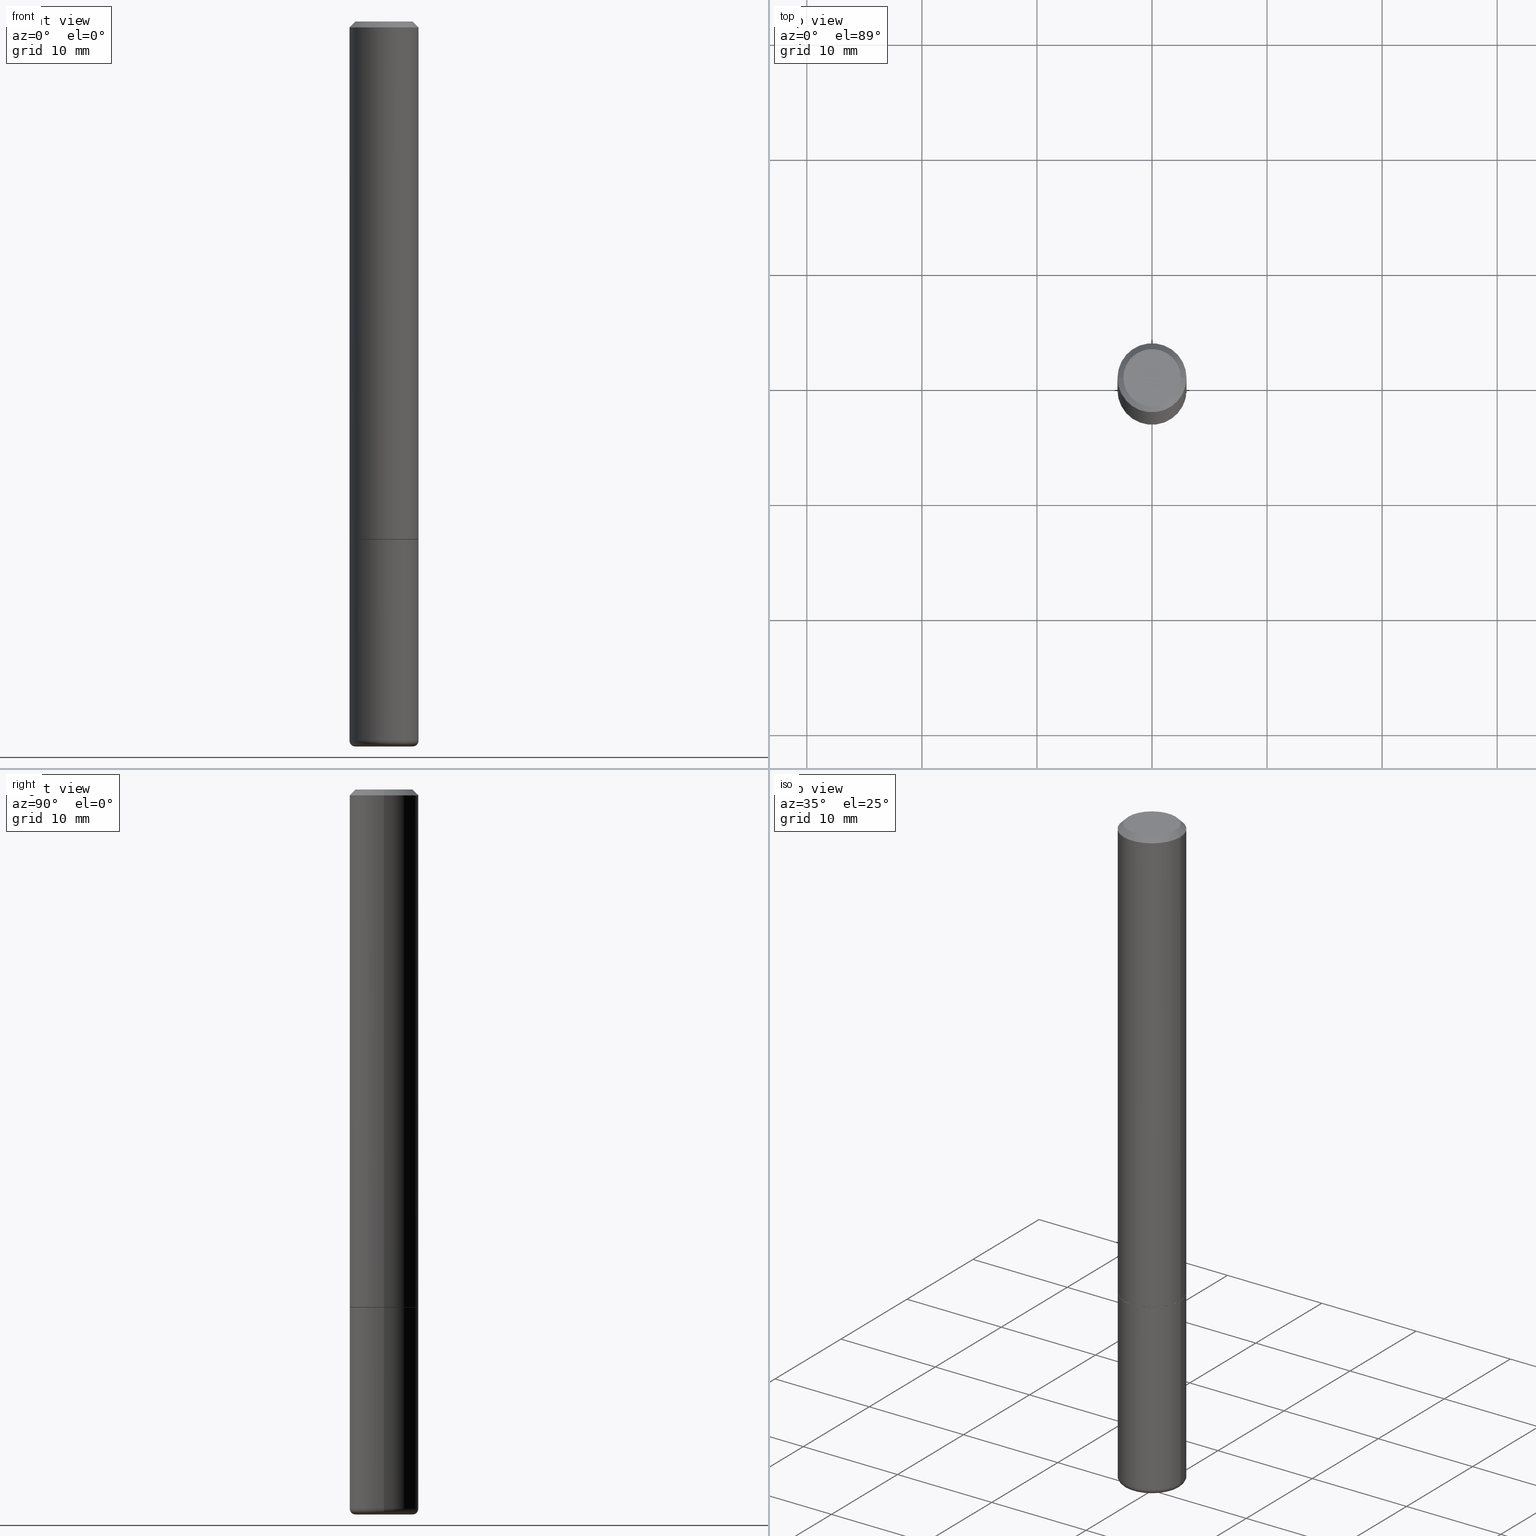
[diagram: canonical four-view strip — front | top / right | iso, engineering-drawing reading convention]
A machine part, canonical four-view strip (front | top / right | iso — engineering-drawing reading convention). The complete STEP part file that produces these views, byte-faithful:
ISO-10303-21;
HEADER;
FILE_DESCRIPTION (( 'STEP AP203' ),
    '1' );
FILE_NAME ('74325.STEP',
    '2024-03-06T15:08:00',
    ( '' ),
    ( '' ),
    'SwSTEP 2.0',
    'SolidWorks 2023',
    '' );
FILE_SCHEMA (( 'CONFIG_CONTROL_DESIGN' ));
ENDSEC;

DATA;
#1 = CARTESIAN_POINT ( 'NONE',  ( -0.09840000000000000135, -7.856367562084741595E-15, -2.480300000000000171 ) ) ;
#2 = DIRECTION ( 'NONE',  ( -6.982962677686266711E-15, -1.000000000000000000, 3.491481338843145583E-15 ) ) ;
#3 = DIRECTION ( 'NONE',  ( -2.445468806185136597E-29, 3.491481338843145583E-15, 1.000000000000000000 ) ) ;
#4 = CIRCLE ( 'NONE', #372, 0.1181000000000000383 ) ;
#5 = CC_DESIGN_APPROVAL ( #174, ( #207 ) ) ;
#6 = FACE_OUTER_BOUND ( 'NONE', #331, .T. ) ;
#7 = DIRECTION ( 'NONE',  ( -2.445468806185136597E-29, 3.491481338843145583E-15, 1.000000000000000000 ) ) ;
#8 = DIRECTION ( 'NONE',  ( -2.445468806185136597E-29, 3.491481338843145583E-15, 1.000000000000000000 ) ) ;
#9 = CARTESIAN_POINT ( 'NONE',  ( 4.332392537037588763E-29, -6.185508339894517569E-15, -1.771600000000000286 ) ) ;
#10 = DIRECTION ( 'NONE',  ( 1.000000000000000000, -6.982962677686264344E-15, 0.000000000000000000 ) ) ;
#11 = APPROVAL_PERSON_ORGANIZATION ( #270, #82, #111 ) ;
#12 = COORDINATED_UNIVERSAL_TIME_OFFSET ( 5, 0, .BEHIND. ) ;
#13 = VERTEX_POINT ( 'NONE', #379 ) ;
#14 = ORIENTED_EDGE ( 'NONE', *, *, #375, .T. ) ;
#15 = DIRECTION ( 'NONE',  ( -1.000000000000000000, 7.105427357601014480E-15, 0.000000000000000000 ) ) ;
#16 = EDGE_LOOP ( 'NONE', ( #206, #256, #295, #34 ) ) ;
#17 = EDGE_CURVE ( 'NONE', #77, #137, #90, .T. ) ;
#18 = APPROVAL_STATUS ( 'not_yet_approved' ) ;
#19 = ADVANCED_FACE ( 'NONE', ( #6 ), #113, .T. ) ;
#20 = DIRECTION ( 'NONE',  ( -2.445468806185136597E-29, 3.491481338843145583E-15, 1.000000000000000000 ) ) ;
#21 = AXIS2_PLACEMENT_3D ( 'NONE', #131, #164, #31 ) ;
#22 = CALENDAR_DATE ( 2024, 6, 3 ) ;
#23 = EDGE_CURVE ( 'NONE', #290, #370, #389, .T. ) ;
#24 = CALENDAR_DATE ( 2024, 6, 3 ) ;
#25 = LINE ( 'NONE', #271, #305 ) ;
#26 = VECTOR ( 'NONE', #56, 39.37007874015748143 ) ;
#27 = SHAPE_DEFINITION_REPRESENTATION ( #73, #367 ) ;
#28 = ADVANCED_FACE ( 'NONE', ( #193 ), #335, .F. ) ;
#29 = EDGE_LOOP ( 'NONE', ( #398, #162 ) ) ;
#30 = VERTEX_POINT ( 'NONE', #258 ) ;
#31 = DIRECTION ( 'NONE',  ( 1.000000000000000000, -6.982962677686264344E-15, 0.000000000000000000 ) ) ;
#32 = CARTESIAN_POINT ( 'NONE',  ( 0.1180999999999999966, -7.010196232129265043E-15, -1.771600000000000286 ) ) ;
#33 = DIRECTION ( 'NONE',  ( 1.000000000000000000, -6.982962677686265133E-15, 0.000000000000000000 ) ) ;
#34 = ORIENTED_EDGE ( 'NONE', *, *, #375, .F. ) ;
#35 = CARTESIAN_POINT ( 'NONE',  ( 4.890937612370288923E-31, -6.982962677686312563E-17, -0.02000000000000006287 ) ) ;
#36 = AXIS2_PLACEMENT_3D ( 'NONE', #194, #291, #10 ) ;
#37 = AXIS2_PLACEMENT_3D ( 'NONE', #187, #253, #184 ) ;
#38 = ORIENTED_EDGE ( 'NONE', *, *, #356, .T. ) ;
#39 = DIRECTION ( 'NONE',  ( 1.000000000000000000, -6.982962677686266711E-15, 4.876176775795936353E-29 ) ) ;
#40 = VERTEX_POINT ( 'NONE', #32 ) ;
#41 = CC_DESIGN_DATE_AND_TIME_ASSIGNMENT ( #235, #313, ( #170 ) ) ;
#42 = CARTESIAN_POINT ( 'NONE',  ( 6.017320544499148018E-29, -8.591138982357444151E-15, -2.460600000000000342 ) ) ;
#43 = CARTESIAN_POINT ( 'NONE',  ( -0.1170999999999999958, -5.353462796319440381E-15, -1.771600000000000286 ) ) ;
#44 = DIRECTION ( 'NONE',  ( 1.000000000000000000, 0.000000000000000000, 0.000000000000000000 ) ) ;
#45 = PERSON_AND_ORGANIZATION ( #188, #108 ) ;
#46 = ORIENTED_EDGE ( 'NONE', *, *, #416, .T. ) ;
#47 = EDGE_CURVE ( 'NONE', #155, #13, #67, .T. ) ;
#48 = ORIENTED_EDGE ( 'NONE', *, *, #185, .F. ) ;
#49 = DATE_AND_TIME ( #22, #296 ) ;
#50 = AXIS2_PLACEMENT_3D ( 'NONE', #312, #230, #39 ) ;
#51 = AXIS2_PLACEMENT_3D ( 'NONE', #98, #7, #154 ) ;
#52 = CC_DESIGN_PERSON_AND_ORGANIZATION_ASSIGNMENT ( #233, #371, ( #170 ) ) ;
#53 = CARTESIAN_POINT ( 'NONE',  ( 0.000000000000000000, 0.000000000000000000, 0.000000000000000000 ) ) ;
#54 = AXIS2_PLACEMENT_3D ( 'NONE', #35, #191, #333 ) ;
#55 = ADVANCED_FACE ( 'NONE', ( #97 ), #319, .F. ) ;
#56 = DIRECTION ( 'NONE',  ( -2.445468806185136877E-29, 3.491481338843145188E-15, 1.000000000000000000 ) ) ;
#57 = EDGE_CURVE ( 'NONE', #63, #160, #378, .T. ) ;
#58 = APPROVAL_ROLE ( '' ) ;
#59 = LOCAL_TIME ( 10, 8, 0.000000000000000000, #306 ) ;
#60 = DIRECTION ( 'NONE',  ( -2.445468806185136597E-29, 3.491481338843145583E-15, 1.000000000000000000 ) ) ;
#61 = CARTESIAN_POINT ( 'NONE',  ( 6.017320544499148018E-29, -8.591138982357444151E-15, -2.460600000000000342 ) ) ;
#62 = DIRECTION ( 'NONE',  ( 1.000000000000000000, -6.982962677686265922E-15, 4.884890577880254879E-29 ) ) ;
#63 = VERTEX_POINT ( 'NONE', #143 ) ;
#64 = DIRECTION ( 'NONE',  ( -2.445468806185136597E-29, 3.491481338843145583E-15, 1.000000000000000000 ) ) ;
#65 = ORIENTED_EDGE ( 'NONE', *, *, #156, .T. ) ;
#66 = CARTESIAN_POINT ( 'NONE',  ( 0.000000000000000000, 0.000000000000000000, 0.000000000000000000 ) ) ;
#67 = CIRCLE ( 'NONE', #248, 0.01970000000000002999 ) ;
#68 = CONICAL_SURFACE ( 'NONE', #37, 0.1181000000000000383, 0.7853981633974463916 ) ;
#69 = EDGE_LOOP ( 'NONE', ( #96, #303, #85, #323 ) ) ;
#70 = DIRECTION ( 'NONE',  ( -1.000000000000000000, 6.982962677686265922E-15, -4.876176775795935793E-29 ) ) ;
#71 = CC_DESIGN_DATE_AND_TIME_ASSIGNMENT ( #264, #144, ( #207 ) ) ;
#72 = PLANE ( 'NONE',  #365 ) ;
#73 = PRODUCT_DEFINITION_SHAPE ( 'NONE', 'NONE',  #207 ) ;
#74 = PERSON_AND_ORGANIZATION ( #188, #108 ) ;
#75 = ORIENTED_EDGE ( 'NONE', *, *, #347, .T. ) ;
#76 = EDGE_CURVE ( 'NONE', #261, #13, #391, .T. ) ;
#77 = VERTEX_POINT ( 'NONE', #345 ) ;
#78 = CARTESIAN_POINT ( 'NONE',  ( 0.000000000000000000, 0.000000000000000000, 0.000000000000000000 ) ) ;
#79 = APPLICATION_PROTOCOL_DEFINITION ( 'international standard', 'config_control_design', 1994, #125 ) ;
#80 = MECHANICAL_CONTEXT ( 'NONE', #302, 'mechanical' ) ;
#81 = DIRECTION ( 'NONE',  ( -0.7071067811865461294, 2.468850131082242072E-15, -0.7071067811865489050 ) ) ;
#82 = APPROVAL ( #268, 'UNSPECIFIED' ) ;
#83 = AXIS2_PLACEMENT_3D ( 'NONE', #337, #225, #15 ) ;
#84 = LINE ( 'NONE', #43, #209 ) ;
#85 = ORIENTED_EDGE ( 'NONE', *, *, #129, .T. ) ;
#86 = ADVANCED_FACE ( 'NONE', ( #122 ), #133, .T. ) ;
#87 = CLOSED_SHELL ( 'NONE', ( #19, #300, #316, #317, #135, #210, #369, #55 ) ) ;
#88 = CIRCLE ( 'NONE', #176, 0.1181000000000002187 ) ;
#89 = CARTESIAN_POINT ( 'NONE',  ( 4.332392537037588763E-29, -6.185508339894517569E-15, -1.771600000000000286 ) ) ;
#90 = LINE ( 'NONE', #179, #139 ) ;
#91 = PLANE ( 'NONE',  #169 ) ;
#92 = CARTESIAN_POINT ( 'NONE',  ( 6.017320544499148018E-29, -8.591138982357444151E-15, -2.460600000000000342 ) ) ;
#93 = CC_DESIGN_PERSON_AND_ORGANIZATION_ASSIGNMENT ( #368, #173, ( #182 ) ) ;
#94 = DIRECTION ( 'NONE',  ( -2.445468806185136597E-29, 3.491481338843145583E-15, 1.000000000000000000 ) ) ;
#95 = CARTESIAN_POINT ( 'NONE',  ( 4.332392537037588763E-29, -6.185508339894517569E-15, -1.771600000000000286 ) ) ;
#96 = ORIENTED_EDGE ( 'NONE', *, *, #17, .F. ) ;
#97 = FACE_OUTER_BOUND ( 'NONE', #197, .T. ) ;
#98 = CARTESIAN_POINT ( 'NONE',  ( 6.065496279980994755E-29, -8.659921164732655335E-15, -2.480300000000000171 ) ) ;
#99 = DIRECTION ( 'NONE',  ( -2.445468806185136597E-29, 3.491481338843145583E-15, 1.000000000000000000 ) ) ;
#100 = ADVANCED_FACE ( 'NONE', ( #380 ), #91, .T. ) ;
#101 = CARTESIAN_POINT ( 'NONE',  ( 0.1170999999999999958, -7.003213269451579029E-15, -1.771600000000000286 ) ) ;
#102 = CARTESIAN_POINT ( 'NONE',  ( 0.000000000000000000, 0.000000000000000000, 0.000000000000000000 ) ) ;
#103 = VERTEX_POINT ( 'NONE', #1 ) ;
#104 = CARTESIAN_POINT ( 'NONE',  ( 4.332392537037588763E-29, -6.185508339894517569E-15, -1.771600000000000286 ) ) ;
#105 =( NAMED_UNIT ( * ) SI_UNIT ( $, .STERADIAN. ) SOLID_ANGLE_UNIT ( ) );
#106 = EDGE_CURVE ( 'NONE', #160, #137, #315, .T. ) ;
#107 = AXIS2_PLACEMENT_3D ( 'NONE', #102, #251, #360 ) ;
#108 = ORGANIZATION ( 'UNSPECIFIED', 'UNSPECIFIED', '' ) ;
#109 = ORIENTED_EDGE ( 'NONE', *, *, #356, .F. ) ;
#110 = ORIENTED_EDGE ( 'NONE', *, *, #281, .F. ) ;
#111 = APPROVAL_ROLE ( '' ) ;
#112 = DIRECTION ( 'NONE',  ( 1.000000000000000000, -6.982962677686273021E-15, 0.000000000000000000 ) ) ;
#113 = CONICAL_SURFACE ( 'NONE', #358, 0.1170999999999999958, 0.7853981633975251064 ) ;
#114 = ORIENTED_EDGE ( 'NONE', *, *, #281, .T. ) ;
#115 = CC_DESIGN_APPROVAL ( #82, ( #182 ) ) ;
#116 = ORIENTED_EDGE ( 'NONE', *, *, #292, .F. ) ;
#117 = ORIENTED_EDGE ( 'NONE', *, *, #276, .T. ) ;
#118 = CIRCLE ( 'NONE', #83, 0.01970000000000002999 ) ;
#119 = APPROVAL_STATUS ( 'not_yet_approved' ) ;
#120 = DIRECTION ( 'NONE',  ( 2.438088387897960049E-29, -3.491481338843145188E-15, -1.000000000000000000 ) ) ;
#121 = CARTESIAN_POINT ( 'NONE',  ( 0.09840000000000000135, -9.347044692216982806E-15, -2.480300000000000171 ) ) ;
#122 = FACE_OUTER_BOUND ( 'NONE', #213, .T. ) ;
#123 = DIRECTION ( 'NONE',  ( -2.438088387897960049E-29, 3.491481338843145188E-15, 1.000000000000000000 ) ) ;
#124 = AXIS2_PLACEMENT_3D ( 'NONE', #320, #354, #62 ) ;
#125 = APPLICATION_CONTEXT ( 'configuration controlled 3d designs of mechanical parts and assemblies' ) ;
#126 = VECTOR ( 'NONE', #329, 39.37007874015748143 ) ;
#127 = LINE ( 'NONE', #132, #126 ) ;
#128 = CYLINDRICAL_SURFACE ( 'NONE', #107, 0.1180999999999999966 ) ;
#129 = EDGE_CURVE ( 'NONE', #341, #160, #25, .T. ) ;
#130 = ORIENTED_EDGE ( 'NONE', *, *, #142, .T. ) ;
#131 = CARTESIAN_POINT ( 'NONE',  ( 4.332392537037588763E-29, -6.185508339894517569E-15, -1.771600000000000286 ) ) ;
#132 = CARTESIAN_POINT ( 'NONE',  ( -0.1180999999999999966, 8.391509709326782957E-16, -5.809262341591043784E-30 ) ) ;
#133 = TOROIDAL_SURFACE ( 'NONE', #272, 0.09840000000000000135, 0.01970000000000002999 ) ;
#134 = CIRCLE ( 'NONE', #401, 0.1180999999999999966 ) ;
#135 = ADVANCED_FACE ( 'NONE', ( #344 ), #407, .T. ) ;
#136 = EDGE_LOOP ( 'NONE', ( #289, #117, #338, #412 ) ) ;
#137 = VERTEX_POINT ( 'NONE', #254 ) ;
#138 = APPROVAL_ROLE ( '' ) ;
#139 = VECTOR ( 'NONE', #293, 39.37007874015748143 ) ;
#140 = CIRCLE ( 'NONE', #241, 0.1180999999999999966 ) ;
#141 = SECURITY_CLASSIFICATION_LEVEL ( 'unclassified' ) ;
#142 = EDGE_CURVE ( 'NONE', #341, #77, #204, .T. ) ;
#143 = CARTESIAN_POINT ( 'NONE',  ( -0.1181000000000002187, -2.286772271733587183E-15, -1.770600000000000174 ) ) ;
#144 = DATE_TIME_ROLE ( 'creation_date' ) ;
#145 = EDGE_CURVE ( 'NONE', #40, #30, #364, .T. ) ;
#146 = DIRECTION ( 'NONE',  ( -2.445468806185136597E-29, 3.491481338843145583E-15, 1.000000000000000000 ) ) ;
#147 = CARTESIAN_POINT ( 'NONE',  ( 4.890937612370288923E-31, -6.982962677686312563E-17, -0.02000000000000006287 ) ) ;
#148 = EDGE_CURVE ( 'NONE', #13, #40, #381, .T. ) ;
#149 = UNCERTAINTY_MEASURE_WITH_UNIT (LENGTH_MEASURE( 1.000000000000000082E-05 ), #168, 'distance_accuracy_value', 'NONE');
#150 = DIRECTION ( 'NONE',  ( -2.445468806185136877E-29, 3.491481338843145188E-15, 1.000000000000000000 ) ) ;
#151 = FACE_OUTER_BOUND ( 'NONE', #29, .T. ) ;
#152 = CARTESIAN_POINT ( 'NONE',  ( 0.09840000000000000135, -9.278262509841773199E-15, -2.460600000000000342 ) ) ;
#153 = CC_DESIGN_SECURITY_CLASSIFICATION ( #170, ( #182 ) ) ;
#154 = DIRECTION ( 'NONE',  ( 1.000000000000000000, -6.982962677686261977E-15, 0.000000000000000000 ) ) ;
#155 = VERTEX_POINT ( 'NONE', #121 ) ;
#156 = EDGE_CURVE ( 'NONE', #137, #160, #4, .T. ) ;
#157 = LOCAL_TIME ( 10, 8, 0.000000000000000000, #239 ) ;
#158 = ADVANCED_FACE ( 'NONE', ( #237 ), #373, .T. ) ;
#159 = DIRECTION ( 'NONE',  ( 1.000000000000000000, -6.982962677686264344E-15, 0.000000000000000000 ) ) ;
#160 = VERTEX_POINT ( 'NONE', #273 ) ;
#161 = DIRECTION ( 'NONE',  ( 1.000000000000000000, -6.982962677686273021E-15, 0.000000000000000000 ) ) ;
#162 = ORIENTED_EDGE ( 'NONE', *, *, #332, .F. ) ;
#163 = EDGE_CURVE ( 'NONE', #267, #63, #84, .T. ) ;
#164 = DIRECTION ( 'NONE',  ( -2.445468806185136597E-29, 3.491481338843145583E-15, 1.000000000000000000 ) ) ;
#165 = DIRECTION ( 'NONE',  ( -0.7071067811866017516, 7.493145998870549798E-15, 0.7071067811864931718 ) ) ;
#166 = EDGE_LOOP ( 'NONE', ( #243, #285 ) ) ;
#167 = ORIENTED_EDGE ( 'NONE', *, *, #106, .F. ) ;
#168 =( CONVERSION_BASED_UNIT ( 'INCH', #363 ) LENGTH_UNIT ( ) NAMED_UNIT ( #343 ) );
#169 = AXIS2_PLACEMENT_3D ( 'NONE', #180, #417, #211 ) ;
#170 = SECURITY_CLASSIFICATION ( '', '', #141 ) ;
#171 = PERSON_AND_ORGANIZATION ( #188, #108 ) ;
#172 = ORIENTED_EDGE ( 'NONE', *, *, #129, .F. ) ;
#173 = PERSON_AND_ORGANIZATION_ROLE ( 'design_supplier' ) ;
#174 = APPROVAL ( #18, 'UNSPECIFIED' ) ;
#175 = AXIS2_PLACEMENT_3D ( 'NONE', #280, #120, #245 ) ;
#176 = AXIS2_PLACEMENT_3D ( 'NONE', #327, #399, #396 ) ;
#177 = VECTOR ( 'NONE', #150, 39.37007874015748143 ) ;
#178 = EDGE_LOOP ( 'NONE', ( #349, #14, #374, #167 ) ) ;
#179 = CARTESIAN_POINT ( 'NONE',  ( 0.1181000000000000383, -8.800544403136812319E-16, -0.02000000000000006287 ) ) ;
#180 = CARTESIAN_POINT ( 'NONE',  ( 6.065496279980994755E-29, -8.659921164732655335E-15, -2.480300000000000171 ) ) ;
#181 = DATE_AND_TIME ( #203, #157 ) ;
#182 = PRODUCT_DEFINITION_FORMATION_WITH_SPECIFIED_SOURCE ( 'ANY', '', #282, .NOT_KNOWN. ) ;
#183 = DIRECTION ( 'NONE',  ( 1.000000000000000000, -6.982962677686266711E-15, 4.876176775795936353E-29 ) ) ;
#184 = DIRECTION ( 'NONE',  ( -1.000000000000000000, 6.982962677686266711E-15, 0.000000000000000000 ) ) ;
#185 = EDGE_CURVE ( 'NONE', #370, #137, #362, .T. ) ;
#186 = ORIENTED_EDGE ( 'NONE', *, *, #163, .T. ) ;
#187 = CARTESIAN_POINT ( 'NONE',  ( 4.890937612370288923E-31, -6.982962677686312563E-17, -0.02000000000000006287 ) ) ;
#188 = PERSON ( 'UNSPECIFIED', 'UNSPECIFIED', 'UNSPECIFIED', ('UNSPECIFIED'), ('UNSPECIFIED'), ('UNSPECIFIED') ) ;
#189 = EDGE_LOOP ( 'NONE', ( #301, #222, #200, #48 ) ) ;
#190 = CONICAL_SURFACE ( 'NONE', #54, 0.1181000000000000383, 0.7853981633974463916 ) ;
#191 = DIRECTION ( 'NONE',  ( 2.445468806185136597E-29, -3.491481338843145583E-15, -1.000000000000000000 ) ) ;
#192 = ORIENTED_EDGE ( 'NONE', *, *, #234, .F. ) ;
#193 = FACE_OUTER_BOUND ( 'NONE', #166, .T. ) ;
#194 = CARTESIAN_POINT ( 'NONE',  ( 4.332392537037588763E-29, -6.185508339894517569E-15, -1.771600000000000286 ) ) ;
#195 =( NAMED_UNIT ( * ) PLANE_ANGLE_UNIT ( ) SI_UNIT ( $, .RADIAN. ) );
#196 = CARTESIAN_POINT ( 'NONE',  ( 0.1181000000000001354, -8.246878922347490515E-16, 5.758764772215007447E-30 ) ) ;
#197 = EDGE_LOOP ( 'NONE', ( #130, #114 ) ) ;
#198 = ORIENTED_EDGE ( 'NONE', *, *, #275, .F. ) ;
#199 = DIRECTION ( 'NONE',  ( 0.000000000000000000, 0.000000000000000000, 1.000000000000000000 ) ) ;
#200 = ORIENTED_EDGE ( 'NONE', *, *, #156, .F. ) ;
#201 = ADVANCED_FACE ( 'NONE', ( #255 ), #128, .T. ) ;
#202 = DATE_AND_TIME ( #24, #348 ) ;
#203 = CALENDAR_DATE ( 2024, 6, 3 ) ;
#204 = CIRCLE ( 'NONE', #124, 0.09809999999999986786 ) ;
#205 = AXIS2_PLACEMENT_3D ( 'NONE', #66, #64, #183 ) ;
#206 = ORIENTED_EDGE ( 'NONE', *, *, #163, .F. ) ;
#207 = PRODUCT_DEFINITION ( 'UNKNOWN', '', #182, #397 ) ;
#208 = FACE_OUTER_BOUND ( 'NONE', #16, .T. ) ;
#209 = VECTOR ( 'NONE', #165, 39.37007874015748854 ) ;
#210 = ADVANCED_FACE ( 'NONE', ( #208 ), #278, .T. ) ;
#211 = DIRECTION ( 'NONE',  ( -1.000000000000000000, 6.982962677686265922E-15, -4.876176775795935793E-29 ) ) ;
#212 = CARTESIAN_POINT ( 'NONE',  ( 0.1181000000000002187, -7.006704750790424403E-15, -1.770600000000000174 ) ) ;
#213 = EDGE_LOOP ( 'NONE', ( #395, #46, #192, #297 ) ) ;
#214 = ADVANCED_FACE ( 'NONE', ( #351 ), #286, .T. ) ;
#215 = DIRECTION ( 'NONE',  ( 2.438088387897960049E-29, -3.491481338843145188E-15, -1.000000000000000000 ) ) ;
#216 = CARTESIAN_POINT ( 'NONE',  ( 4.329947068231403160E-29, -6.182016858555674562E-15, -1.770600000000000174 ) ) ;
#217 = DIRECTION ( 'NONE',  ( -2.445468806185136597E-29, 3.491481338843145583E-15, 1.000000000000000000 ) ) ;
#218 = AXIS2_PLACEMENT_3D ( 'NONE', #53, #146, #376 ) ;
#219 = AXIS2_PLACEMENT_3D ( 'NONE', #95, #60, #159 ) ;
#220 = DIRECTION ( 'NONE',  ( 0.7071067811866017516, -2.468850131082825040E-15, 0.7071067811864931718 ) ) ;
#221 = DIRECTION ( 'NONE',  ( 1.000000000000000000, -6.982962677686265922E-15, 4.884890577880254879E-29 ) ) ;
#222 = ORIENTED_EDGE ( 'NONE', *, *, #57, .T. ) ;
#223 = APPROVAL_DATE_TIME ( #49, #82 ) ;
#224 = EDGE_LOOP ( 'NONE', ( #247, #38, #238, #408 ) ) ;
#225 = DIRECTION ( 'NONE',  ( 7.105427357601001859E-15, 1.000000000000000000, -3.491481338843145583E-15 ) ) ;
#226 = ORIENTED_EDGE ( 'NONE', *, *, #276, .F. ) ;
#227 = VECTOR ( 'NONE', #299, 39.37007874015748143 ) ;
#228 = PERSON_AND_ORGANIZATION_ROLE ( 'creator' ) ;
#229 = APPROVAL_PERSON_ORGANIZATION ( #318, #340, #58 ) ;
#230 = DIRECTION ( 'NONE',  ( -2.445468806185136597E-29, 3.491481338843145583E-15, 1.000000000000000000 ) ) ;
#231 = EDGE_CURVE ( 'NONE', #30, #40, #140, .T. ) ;
#232 = PERSON_AND_ORGANIZATION_ROLE ( 'creator' ) ;
#233 = PERSON_AND_ORGANIZATION ( #188, #108 ) ;
#234 = EDGE_CURVE ( 'NONE', #13, #261, #134, .T. ) ;
#235 = DATE_AND_TIME ( #298, #410 ) ;
#236 = AXIS2_PLACEMENT_3D ( 'NONE', #9, #215, #70 ) ;
#237 = FACE_OUTER_BOUND ( 'NONE', #136, .T. ) ;
#238 = ORIENTED_EDGE ( 'NONE', *, *, #47, .T. ) ;
#239 = COORDINATED_UNIVERSAL_TIME_OFFSET ( 5, 0, .BEHIND. ) ;
#240 = CLOSED_SHELL ( 'NONE', ( #158, #86, #28, #201, #214, #100 ) ) ;
#241 = AXIS2_PLACEMENT_3D ( 'NONE', #326, #99, #33 ) ;
#242 = CC_DESIGN_PERSON_AND_ORGANIZATION_ASSIGNMENT ( #45, #304, ( #282 ) ) ;
#243 = ORIENTED_EDGE ( 'NONE', *, *, #145, .T. ) ;
#244 = DIRECTION ( 'NONE',  ( 1.000000000000000000, -6.982962677686265133E-15, 0.000000000000000000 ) ) ;
#245 = DIRECTION ( 'NONE',  ( -1.000000000000000000, 6.982962677686265922E-15, -4.876176775795935793E-29 ) ) ;
#246 = CARTESIAN_POINT ( 'NONE',  ( 6.065496279980994755E-29, -8.659921164732655335E-15, -2.480300000000000171 ) ) ;
#247 = ORIENTED_EDGE ( 'NONE', *, *, #416, .F. ) ;
#248 = AXIS2_PLACEMENT_3D ( 'NONE', #152, #2, #386 ) ;
#249 = FACE_OUTER_BOUND ( 'NONE', #189, .T. ) ;
#250 = DIRECTION ( 'NONE',  ( -2.445468806185136597E-29, 3.491481338843145583E-15, 1.000000000000000000 ) ) ;
#251 = DIRECTION ( 'NONE',  ( -2.445468806185136597E-29, 3.491481338843145583E-15, 1.000000000000000000 ) ) ;
#252 = DIRECTION ( 'NONE',  ( 1.000000000000000000, -6.982962677686264344E-15, 0.000000000000000000 ) ) ;
#253 = DIRECTION ( 'NONE',  ( 2.445468806185136597E-29, -3.491481338843145583E-15, -1.000000000000000000 ) ) ;
#254 = CARTESIAN_POINT ( 'NONE',  ( 0.1181000000000000383, -8.800544403136812319E-16, -0.02000000000000006287 ) ) ;
#255 = FACE_OUTER_BOUND ( 'NONE', #328, .T. ) ;
#256 = ORIENTED_EDGE ( 'NONE', *, *, #332, .T. ) ;
#257 = CIRCLE ( 'NONE', #359, 0.1181000000000002187 ) ;
#258 = CARTESIAN_POINT ( 'NONE',  ( -0.1180999999999999966, -6.549172690193302663E-15, -1.771600000000000286 ) ) ;
#259 = FACE_OUTER_BOUND ( 'NONE', #260, .T. ) ;
#260 = EDGE_LOOP ( 'NONE', ( #110, #400, #65, #172 ) ) ;
#261 = VERTEX_POINT ( 'NONE', #353 ) ;
#262 = APPROVAL_DATE_TIME ( #202, #174 ) ;
#263 = AXIS2_PLACEMENT_3D ( 'NONE', #61, #217, #336 ) ;
#264 = DATE_AND_TIME ( #366, #59 ) ;
#265 = CIRCLE ( 'NONE', #21, 0.1170999999999999958 ) ;
#266 = DIRECTION ( 'NONE',  ( 1.000000000000000000, -6.982962677686266711E-15, 0.000000000000000000 ) ) ;
#267 = VERTEX_POINT ( 'NONE', #387 ) ;
#268 = APPROVAL_STATUS ( 'not_yet_approved' ) ;
#269 = CARTESIAN_POINT ( 'NONE',  ( 6.017320544499148018E-29, -8.591138982357444151E-15, -2.460600000000000342 ) ) ;
#270 = PERSON_AND_ORGANIZATION ( #188, #108 ) ;
#271 = CARTESIAN_POINT ( 'NONE',  ( -0.1181000000000000383, 7.548582654578852602E-16, -0.02000000000000006287 ) ) ;
#272 = AXIS2_PLACEMENT_3D ( 'NONE', #92, #94, #325 ) ;
#273 = CARTESIAN_POINT ( 'NONE',  ( -0.1181000000000000383, 7.548582654578852602E-16, -0.02000000000000006287 ) ) ;
#274 = DIRECTION ( 'NONE',  ( 1.000000000000000000, -6.982962677686266711E-15, 0.000000000000000000 ) ) ;
#275 = EDGE_CURVE ( 'NONE', #155, #103, #415, .T. ) ;
#276 = EDGE_CURVE ( 'NONE', #261, #30, #127, .T. ) ;
#277 = DIRECTION ( 'NONE',  ( -2.445468806185136597E-29, 3.491481338843145583E-15, 1.000000000000000000 ) ) ;
#278 = CONICAL_SURFACE ( 'NONE', #36, 0.1170999999999999958, 0.7853981633975251064 ) ;
#279 = AXIS2_PLACEMENT_3D ( 'NONE', #246, #394, #283 ) ;
#280 = CARTESIAN_POINT ( 'NONE',  ( 6.850286386810217648E-16, 0.09809999999999986786, -2.528755570484034997E-16 ) ) ;
#281 = EDGE_CURVE ( 'NONE', #77, #341, #330, .T. ) ;
#282 = PRODUCT ( '74325', '74325', '', ( #80 ) ) ;
#283 = DIRECTION ( 'NONE',  ( 1.000000000000000000, -6.982962677686261977E-15, 0.000000000000000000 ) ) ;
#284 = CARTESIAN_POINT ( 'NONE',  ( 0.1170999999999999958, -7.003213269451579029E-15, -1.771600000000000286 ) ) ;
#285 = ORIENTED_EDGE ( 'NONE', *, *, #231, .T. ) ;
#286 = TOROIDAL_SURFACE ( 'NONE', #263, 0.09840000000000000135, 0.01970000000000002999 ) ;
#287 = AXIS2_PLACEMENT_3D ( 'NONE', #78, #199, #44 ) ;
#288 = DIRECTION ( 'NONE',  ( 1.000000000000000000, -6.982962677686265922E-15, 4.876176775795935793E-29 ) ) ;
#289 = ORIENTED_EDGE ( 'NONE', *, *, #234, .T. ) ;
#290 = VERTEX_POINT ( 'NONE', #284 ) ;
#291 = DIRECTION ( 'NONE',  ( -2.445468806185136597E-29, 3.491481338843145583E-15, 1.000000000000000000 ) ) ;
#292 = EDGE_CURVE ( 'NONE', #370, #63, #257, .T. ) ;
#293 = DIRECTION ( 'NONE',  ( 0.7071067811865461294, -7.319954787623251312E-15, -0.7071067811865489050 ) ) ;
#294 = CARTESIAN_POINT ( 'NONE',  ( -0.09809999999999986786, 7.199434520694538083E-16, 1.792775245842123495E-16 ) ) ;
#295 = ORIENTED_EDGE ( 'NONE', *, *, #23, .T. ) ;
#296 = LOCAL_TIME ( 10, 8, 0.000000000000000000, #12 ) ;
#297 = ORIENTED_EDGE ( 'NONE', *, *, #47, .F. ) ;
#298 = CALENDAR_DATE ( 2024, 6, 3 ) ;
#299 = DIRECTION ( 'NONE',  ( -2.445468806185136877E-29, 3.491481338843145188E-15, 1.000000000000000000 ) ) ;
#300 = ADVANCED_FACE ( 'NONE', ( #249 ), #383, .T. ) ;
#301 = ORIENTED_EDGE ( 'NONE', *, *, #292, .T. ) ;
#302 = APPLICATION_CONTEXT ( 'configuration controlled 3d designs of mechanical parts and assemblies' ) ;
#303 = ORIENTED_EDGE ( 'NONE', *, *, #142, .F. ) ;
#304 = PERSON_AND_ORGANIZATION_ROLE ( 'design_owner' ) ;
#305 = VECTOR ( 'NONE', #81, 39.37007874015748143 ) ;
#306 = COORDINATED_UNIVERSAL_TIME_OFFSET ( 5, 0, .BEHIND. ) ;
#307 = CIRCLE ( 'NONE', #279, 0.09840000000000000135 ) ;
#308 = MANIFOLD_SOLID_BREP ( 'Body-Move/Copy2[1]', #240 ) ;
#309 = EDGE_LOOP ( 'NONE', ( #198, #109 ) ) ;
#310 = CC_DESIGN_PERSON_AND_ORGANIZATION_ASSIGNMENT ( #402, #232, ( #182 ) ) ;
#311 = COORDINATED_UNIVERSAL_TIME_OFFSET ( 5, 0, .BEHIND. ) ;
#312 = CARTESIAN_POINT ( 'NONE',  ( 0.000000000000000000, 0.000000000000000000, 0.000000000000000000 ) ) ;
#313 = DATE_TIME_ROLE ( 'classification_date' ) ;
#314 = AXIS2_PLACEMENT_3D ( 'NONE', #147, #20, #266 ) ;
#315 = CIRCLE ( 'NONE', #314, 0.1181000000000000383 ) ;
#316 = ADVANCED_FACE ( 'NONE', ( #259 ), #68, .T. ) ;
#317 = ADVANCED_FACE ( 'NONE', ( #390 ), #190, .T. ) ;
#318 = PERSON_AND_ORGANIZATION ( #188, #108 ) ;
#319 = PLANE ( 'NONE',  #175 ) ;
#320 = CARTESIAN_POINT ( 'NONE',  ( -4.384175940207923203E-45, 6.259441315597878405E-31, 1.792775245842172799E-16 ) ) ;
#321 = ORIENTED_EDGE ( 'NONE', *, *, #23, .F. ) ;
#322 = MANIFOLD_SOLID_BREP ( 'Body-Move/Copy2[2]', #87 ) ;
#323 = ORIENTED_EDGE ( 'NONE', *, *, #106, .T. ) ;
#324 = APPROVAL_PERSON_ORGANIZATION ( #74, #174, #138 ) ;
#325 = DIRECTION ( 'NONE',  ( 1.000000000000000000, -6.982962677686270655E-15, 4.883557194083114583E-29 ) ) ;
#326 = CARTESIAN_POINT ( 'NONE',  ( 4.332392537037588763E-29, -6.185508339894517569E-15, -1.771600000000000286 ) ) ;
#327 = CARTESIAN_POINT ( 'NONE',  ( 4.329947068231403160E-29, -6.182016858555674562E-15, -1.770600000000000174 ) ) ;
#328 = EDGE_LOOP ( 'NONE', ( #226, #393, #334, #384 ) ) ;
#329 = DIRECTION ( 'NONE',  ( -2.445468806185136877E-29, 3.491481338843145188E-15, 1.000000000000000000 ) ) ;
#330 = CIRCLE ( 'NONE', #342, 0.09809999999999986786 ) ;
#331 = EDGE_LOOP ( 'NONE', ( #75, #186, #116, #321 ) ) ;
#332 = EDGE_CURVE ( 'NONE', #267, #290, #265, .T. ) ;
#333 = DIRECTION ( 'NONE',  ( -1.000000000000000000, 6.982962677686266711E-15, 0.000000000000000000 ) ) ;
#334 = ORIENTED_EDGE ( 'NONE', *, *, #148, .T. ) ;
#335 = PLANE ( 'NONE',  #236 ) ;
#336 = DIRECTION ( 'NONE',  ( 1.000000000000000000, -6.982962677686270655E-15, 4.883557194083114583E-29 ) ) ;
#337 = CARTESIAN_POINT ( 'NONE',  ( -0.09840000000000000135, -7.891964930369506840E-15, -2.460600000000000342 ) ) ;
#338 = ORIENTED_EDGE ( 'NONE', *, *, #145, .F. ) ;
#339 = APPLICATION_PROTOCOL_DEFINITION ( 'international standard', 'config_control_design', 1994, #302 ) ;
#340 = APPROVAL ( #119, 'UNSPECIFIED' ) ;
#341 = VERTEX_POINT ( 'NONE', #294 ) ;
#342 = AXIS2_PLACEMENT_3D ( 'NONE', #388, #357, #221 ) ;
#343 = DIMENSIONAL_EXPONENTS ( 1.000000000000000000, 0.000000000000000000, 0.000000000000000000, 0.000000000000000000, 0.000000000000000000, 0.000000000000000000, 0.000000000000000000 ) ;
#344 = FACE_OUTER_BOUND ( 'NONE', #178, .T. ) ;
#345 = CARTESIAN_POINT ( 'NONE',  ( 0.09809999999999986786, -7.765346469475334625E-16, 1.792775245842223582E-16 ) ) ;
#346 = APPROVAL_DATE_TIME ( #181, #340 ) ;
#347 = EDGE_CURVE ( 'NONE', #290, #267, #352, .T. ) ;
#348 = LOCAL_TIME ( 10, 8, 0.000000000000000000, #311 ) ;
#349 = ORIENTED_EDGE ( 'NONE', *, *, #57, .F. ) ;
#350 = CARTESIAN_POINT ( 'NONE',  ( 0.1180999999999999966, -8.246878922347480654E-16, 5.758764772215000440E-30 ) ) ;
#351 = FACE_OUTER_BOUND ( 'NONE', #224, .T. ) ;
#352 = CIRCLE ( 'NONE', #219, 0.1170999999999999958 ) ;
#353 = CARTESIAN_POINT ( 'NONE',  ( -0.1181000000000000105, -7.751988011424766742E-15, -2.460600000000000342 ) ) ;
#354 = DIRECTION ( 'NONE',  ( -2.445468806185136597E-29, 3.491481338843145583E-15, 1.000000000000000000 ) ) ;
#355 = DIRECTION ( 'NONE',  ( 1.000000000000000000, -6.982962677686267499E-15, 0.000000000000000000 ) ) ;
#356 = EDGE_CURVE ( 'NONE', #103, #155, #307, .T. ) ;
#357 = DIRECTION ( 'NONE',  ( -2.445468806185136597E-29, 3.491481338843145583E-15, 1.000000000000000000 ) ) ;
#358 = AXIS2_PLACEMENT_3D ( 'NONE', #104, #250, #252 ) ;
#359 = AXIS2_PLACEMENT_3D ( 'NONE', #216, #8, #355 ) ;
#360 = DIRECTION ( 'NONE',  ( 1.000000000000000000, -6.982962677686266711E-15, 4.876176775795936353E-29 ) ) ;
#361 = COORDINATED_UNIVERSAL_TIME_OFFSET ( 5, 0, .BEHIND. ) ;
#362 = LINE ( 'NONE', #196, #227 ) ;
#363 = LENGTH_MEASURE_WITH_UNIT ( LENGTH_MEASURE( 0.02539999999999999897 ), #404 );
#364 = CIRCLE ( 'NONE', #409, 0.1180999999999999966 ) ;
#365 = AXIS2_PLACEMENT_3D ( 'NONE', #418, #123, #288 ) ;
#366 = CALENDAR_DATE ( 2024, 6, 3 ) ;
#367 = ADVANCED_BREP_SHAPE_REPRESENTATION ( '74325', ( #308, #322, #287 ), #392 ) ;
#368 = PERSON_AND_ORGANIZATION ( #188, #108 ) ;
#369 = ADVANCED_FACE ( 'NONE', ( #151 ), #72, .F. ) ;
#370 = VERTEX_POINT ( 'NONE', #212 ) ;
#371 = PERSON_AND_ORGANIZATION_ROLE ( 'classification_officer' ) ;
#372 = AXIS2_PLACEMENT_3D ( 'NONE', #382, #411, #274 ) ;
#373 = CYLINDRICAL_SURFACE ( 'NONE', #218, 0.1180999999999999966 ) ;
#374 = ORIENTED_EDGE ( 'NONE', *, *, #185, .T. ) ;
#375 = EDGE_CURVE ( 'NONE', #63, #370, #88, .T. ) ;
#376 = DIRECTION ( 'NONE',  ( 1.000000000000000000, -6.982962677686266711E-15, 4.876176775795936353E-29 ) ) ;
#377 = CARTESIAN_POINT ( 'NONE',  ( -0.1181000000000001354, 8.391509709326792818E-16, -5.809262341591050090E-30 ) ) ;
#378 = LINE ( 'NONE', #377, #26 ) ;
#379 = CARTESIAN_POINT ( 'NONE',  ( 0.1181000000000000105, -9.415826874592192413E-15, -2.460600000000000342 ) ) ;
#380 = FACE_OUTER_BOUND ( 'NONE', #309, .T. ) ;
#381 = LINE ( 'NONE', #350, #177 ) ;
#382 = CARTESIAN_POINT ( 'NONE',  ( 4.890937612370288923E-31, -6.982962677686312563E-17, -0.02000000000000006287 ) ) ;
#383 = CYLINDRICAL_SURFACE ( 'NONE', #205, 0.1181000000000001354 ) ;
#384 = ORIENTED_EDGE ( 'NONE', *, *, #231, .F. ) ;
#385 = VECTOR ( 'NONE', #220, 39.37007874015748854 ) ;
#386 = DIRECTION ( 'NONE',  ( 1.000000000000000000, -6.982962677686218590E-15, 0.000000000000000000 ) ) ;
#387 = CARTESIAN_POINT ( 'NONE',  ( -0.1170999999999999958, -5.348164341971217190E-15, -1.771600000000000286 ) ) ;
#388 = CARTESIAN_POINT ( 'NONE',  ( -4.384175940207923203E-45, 6.259441315597878405E-31, 1.792775245842172799E-16 ) ) ;
#389 = LINE ( 'NONE', #101, #385 ) ;
#390 = FACE_OUTER_BOUND ( 'NONE', #69, .T. ) ;
#391 = CIRCLE ( 'NONE', #413, 0.1180999999999999966 ) ;
#392 =( GEOMETRIC_REPRESENTATION_CONTEXT ( 3 ) GLOBAL_UNCERTAINTY_ASSIGNED_CONTEXT ( ( #149 ) ) GLOBAL_UNIT_ASSIGNED_CONTEXT ( ( #168, #195, #105 ) ) REPRESENTATION_CONTEXT ( 'NONE', 'WORKASPACE' ) );
#393 = ORIENTED_EDGE ( 'NONE', *, *, #76, .T. ) ;
#394 = DIRECTION ( 'NONE',  ( -2.445468806185136597E-29, 3.491481338843145583E-15, 1.000000000000000000 ) ) ;
#395 = ORIENTED_EDGE ( 'NONE', *, *, #275, .T. ) ;
#396 = DIRECTION ( 'NONE',  ( 1.000000000000000000, -6.982962677686267499E-15, 0.000000000000000000 ) ) ;
#397 = DESIGN_CONTEXT ( 'detailed design', #125, 'design' ) ;
#398 = ORIENTED_EDGE ( 'NONE', *, *, #347, .F. ) ;
#399 = DIRECTION ( 'NONE',  ( -2.445468806185136597E-29, 3.491481338843145583E-15, 1.000000000000000000 ) ) ;
#400 = ORIENTED_EDGE ( 'NONE', *, *, #17, .T. ) ;
#401 = AXIS2_PLACEMENT_3D ( 'NONE', #42, #3, #161 ) ;
#402 = PERSON_AND_ORGANIZATION ( #188, #108 ) ;
#403 = CC_DESIGN_PERSON_AND_ORGANIZATION_ASSIGNMENT ( #171, #228, ( #207 ) ) ;
#404 =( LENGTH_UNIT ( ) NAMED_UNIT ( * ) SI_UNIT ( $, .METRE. ) );
#405 = DIRECTION ( 'NONE',  ( -2.445468806185136597E-29, 3.491481338843145583E-15, 1.000000000000000000 ) ) ;
#406 = CC_DESIGN_APPROVAL ( #340, ( #170 ) ) ;
#407 = CYLINDRICAL_SURFACE ( 'NONE', #50, 0.1181000000000001354 ) ;
#408 = ORIENTED_EDGE ( 'NONE', *, *, #76, .F. ) ;
#409 = AXIS2_PLACEMENT_3D ( 'NONE', #89, #277, #244 ) ;
#410 = LOCAL_TIME ( 10, 8, 0.000000000000000000, #361 ) ;
#411 = DIRECTION ( 'NONE',  ( -2.445468806185136597E-29, 3.491481338843145583E-15, 1.000000000000000000 ) ) ;
#412 = ORIENTED_EDGE ( 'NONE', *, *, #148, .F. ) ;
#413 = AXIS2_PLACEMENT_3D ( 'NONE', #269, #405, #112 ) ;
#414 = PRODUCT_RELATED_PRODUCT_CATEGORY ( 'detail', '', ( #282 ) ) ;
#415 = CIRCLE ( 'NONE', #51, 0.09840000000000000135 ) ;
#416 = EDGE_CURVE ( 'NONE', #103, #261, #118, .T. ) ;
#417 = DIRECTION ( 'NONE',  ( 2.438088387897960049E-29, -3.491481338843145188E-15, -1.000000000000000000 ) ) ;
#418 = CARTESIAN_POINT ( 'NONE',  ( 4.332392537037588763E-29, -6.185508339894517569E-15, -1.771600000000000286 ) ) ;
ENDSEC;
END-ISO-10303-21;
